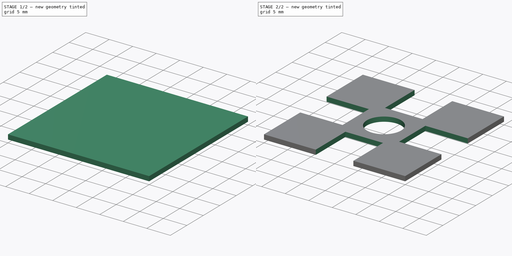
[diagram: build sequence overview — one tinted view per stage of 2, left to right]
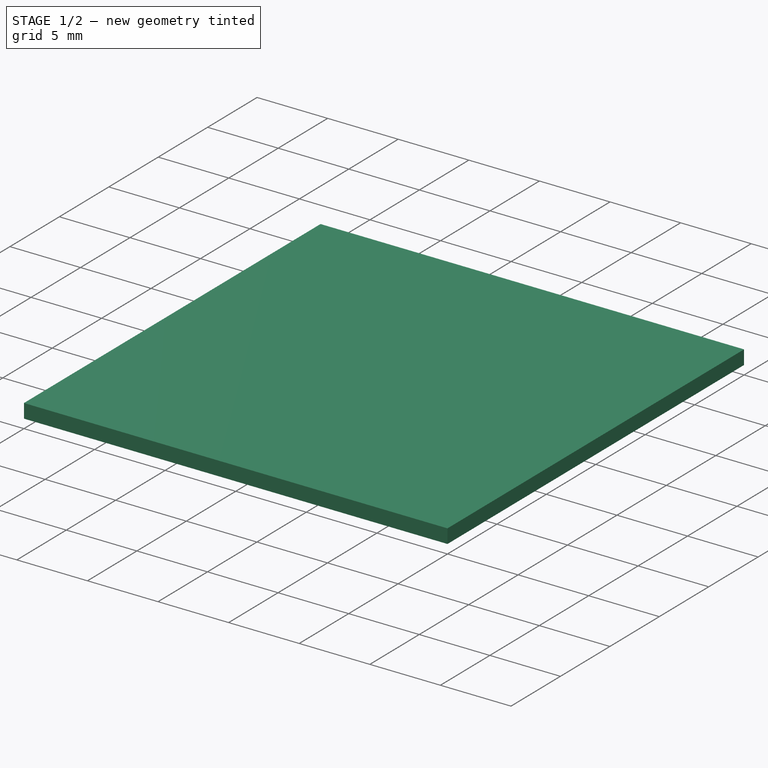
[diagram: stage 1 of 2 — iso view after this stage's code; geometry added in this stage tinted green]
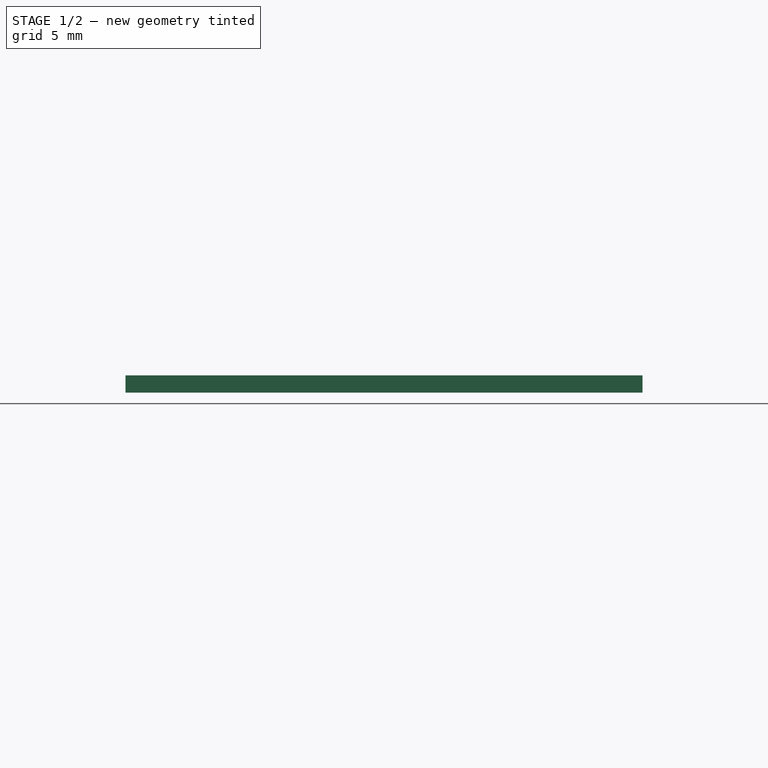
[diagram: stage 1 of 2 — front view after this stage's code; geometry added in this stage tinted green]
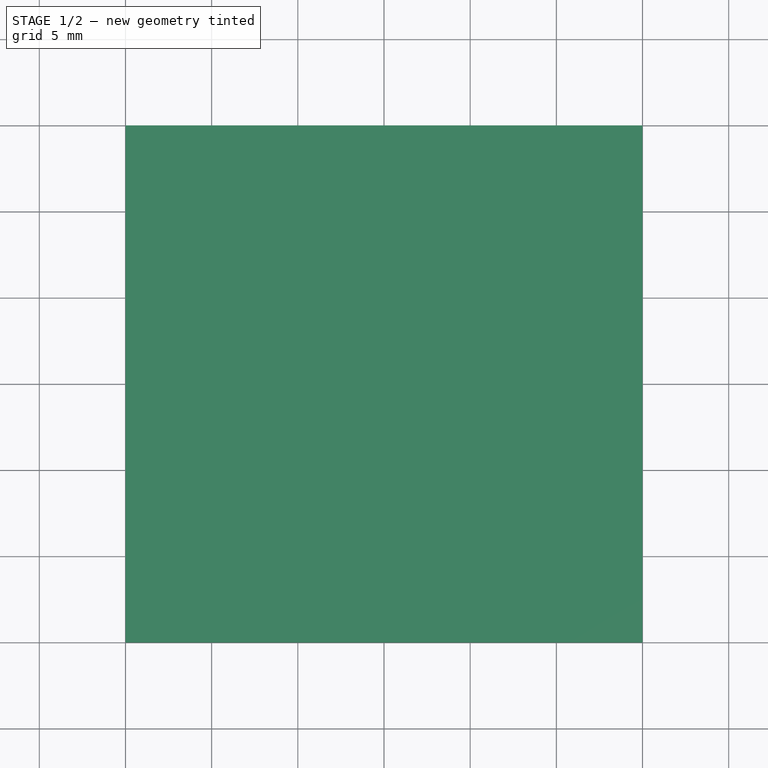
[diagram: stage 1 of 2 — top view after this stage's code; geometry added in this stage tinted green]
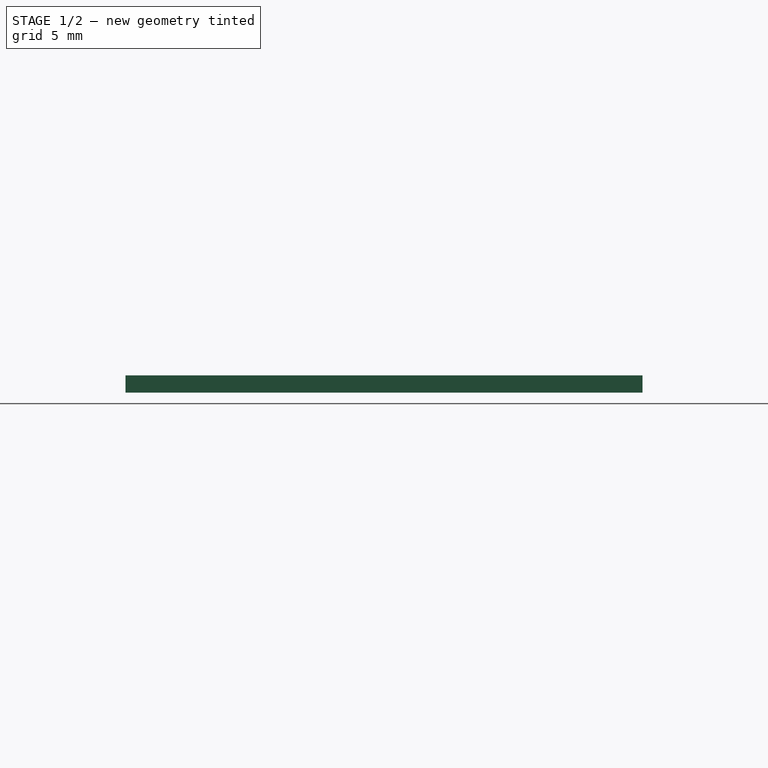
[diagram: stage 1 of 2 — right view after this stage's code; geometry added in this stage tinted green]
FCSTD DOCUMENT  (FreeCAD 0.16R5231 (Git))
Label: 30x30x1 Profile
License: All rights reserved
LicenseURL: http://en.wikipedia.org/wiki/All_rights_reserved
objects: Sketcher::SketchObject×2, PartDesign::Pad×1, PartDesign::Pocket×1
note: 6 computed .brp shape members not serialized (recipe doc carries the construction recipe); baked Part::Feature solids carry a one-line shape summary decoded from their .brp

FEATURE [Sketcher::SketchObject] Sketch003
  sketch-geometry (4):
    g0: LineSegment StartX=0 StartY=0 StartZ=0 EndX=30 EndY=0 EndZ=0
    g1: LineSegment StartX=30 StartY=0 StartZ=0 EndX=30 EndY=30 EndZ=0
    g2: LineSegment StartX=30 StartY=30 StartZ=0 EndX=0 EndY=30 EndZ=0
    g3: LineSegment StartX=0 StartY=30 StartZ=0 EndX=0 EndY=0 EndZ=0
  constraints (11):
    c: Coincident(g0,g1)
    c: Coincident(g1,g2)
    c: Coincident(g2,g3)
    c: Coincident(g3,g0)
    c: Horizontal(g0)
    c: Horizontal(g2)
    c: Vertical(g1)
    c: Vertical(g3)
    c: Coincident(g0,g-1)
    c: DistanceY(g3) = -30
    c: Equal(g0,g3)
FEATURE [PartDesign::Pad] Pad002
  Length = 1
  Length2 = 100
  Sketch = -> Sketch003
  Type = 0
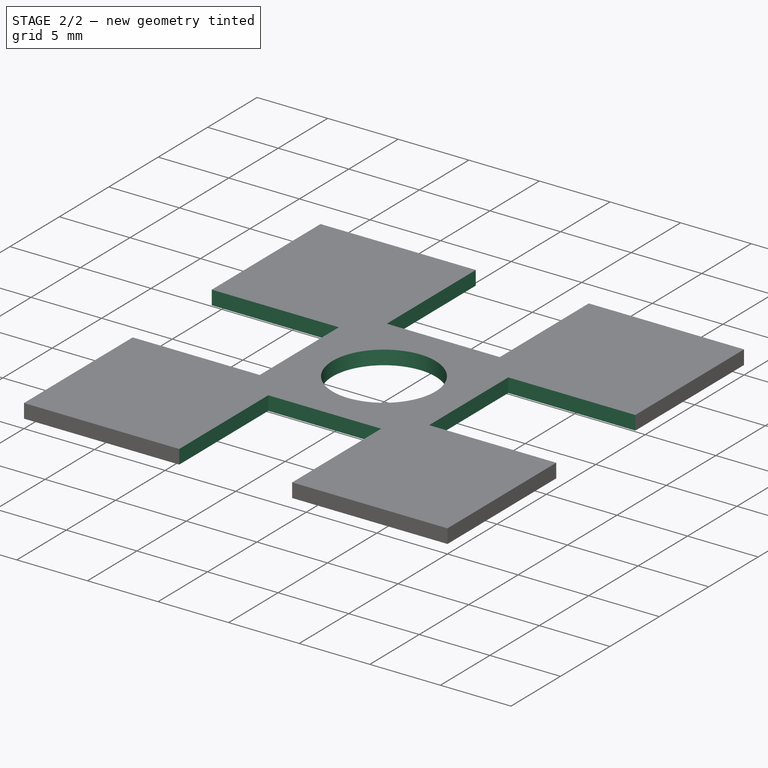
[diagram: stage 2 of 2 — iso view after this stage's code; geometry added in this stage tinted green]
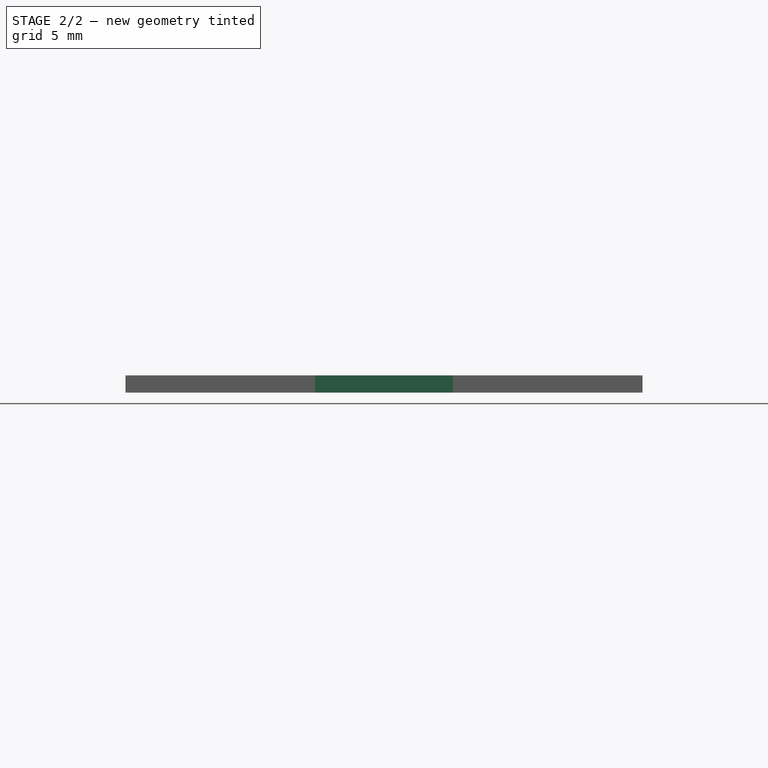
[diagram: stage 2 of 2 — front view after this stage's code; geometry added in this stage tinted green]
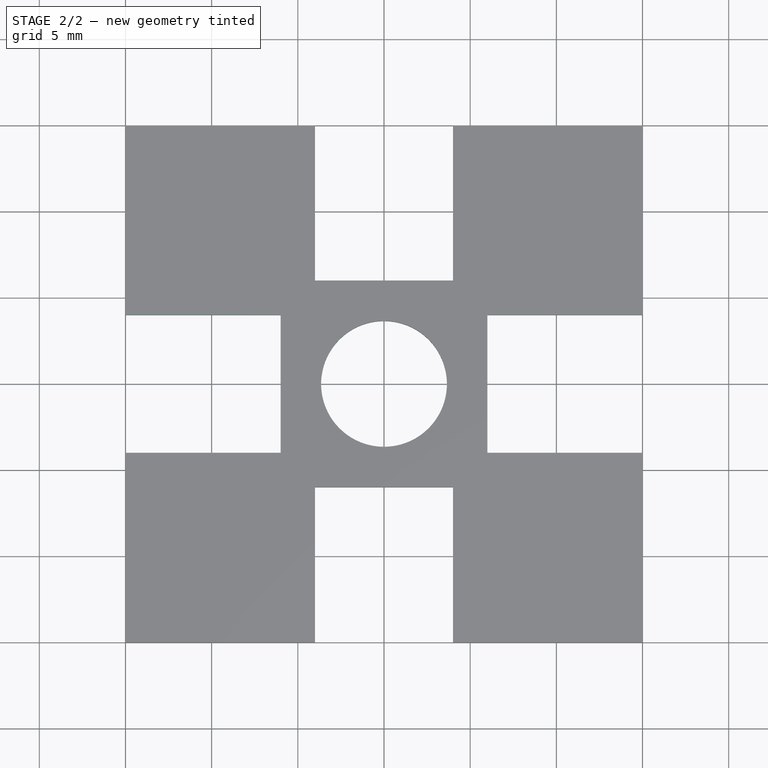
[diagram: stage 2 of 2 — top view after this stage's code; geometry added in this stage tinted green]
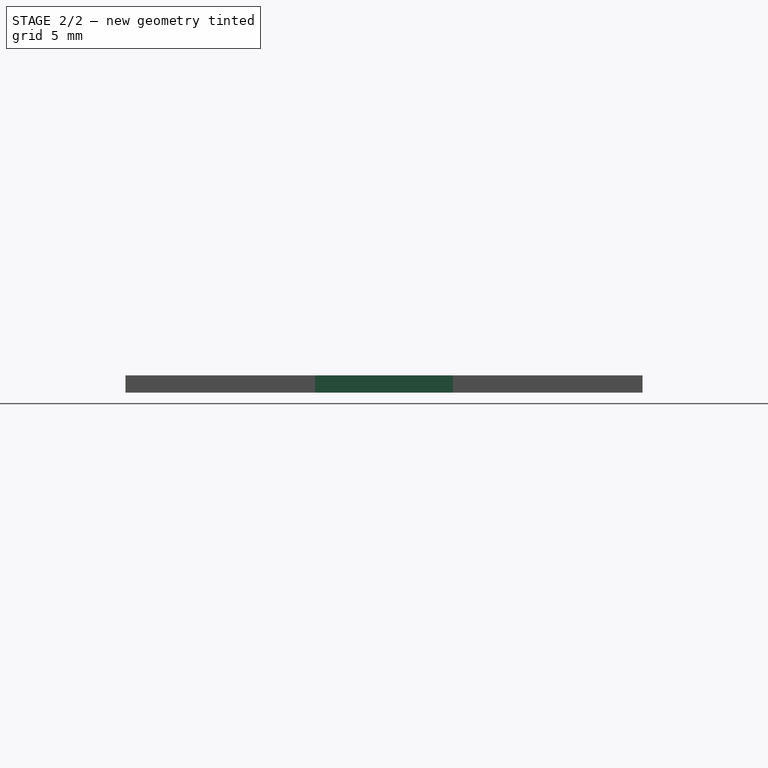
[diagram: stage 2 of 2 — right view after this stage's code; geometry added in this stage tinted green]
FEATURE [Sketcher::SketchObject] Sketch002  label="Sketch007"
  ExternalGeometry = -> [Pad002]
  Placement = pos=(0,0,1) rot=(0,0,1;0rad)
  Support = -> Pad002 [Face6]
  sketch-geometry (22):
    g0: LineSegment StartX=11 StartY=30 StartZ=0 EndX=19 EndY=30 EndZ=0
    g1: LineSegment StartX=19 StartY=30 StartZ=0 EndX=19 EndY=21 EndZ=0
    g2: LineSegment StartX=19 StartY=21 StartZ=0 EndX=11 EndY=21 EndZ=0
    g3: LineSegment StartX=11 StartY=21 StartZ=0 EndX=11 EndY=30 EndZ=0
    g4: Circle CenterX=15 CenterY=15 CenterZ=0 NormalX=0 NormalY=0 NormalZ=1 Radius=3.65
    g5: LineSegment StartX=11 StartY=0 StartZ=0 EndX=19 EndY=0 EndZ=0
    g6: LineSegment StartX=19 StartY=0 StartZ=0 EndX=19 EndY=9 EndZ=0
    g7: LineSegment StartX=19 StartY=9 StartZ=0 EndX=11 EndY=9 EndZ=0
    g8: LineSegment StartX=11 StartY=9 StartZ=0 EndX=11 EndY=0 EndZ=0
    g9: LineSegment StartX=0 StartY=19 StartZ=0 EndX=9 EndY=19 EndZ=0
    g10: LineSegment StartX=9 StartY=19 StartZ=0 EndX=9 EndY=11 EndZ=0
    g11: LineSegment StartX=9 StartY=11 StartZ=0 EndX=0 EndY=11 EndZ=0
    g12: LineSegment StartX=0 StartY=11 StartZ=0 EndX=0 EndY=19 EndZ=0
    g13: LineSegment StartX=30 StartY=11 StartZ=0 EndX=21 EndY=11 EndZ=0
    g14: LineSegment StartX=21 StartY=11 StartZ=0 EndX=21 EndY=19 EndZ=0
    g15: LineSegment StartX=21 StartY=19 StartZ=0 EndX=30 EndY=19 EndZ=0
    g16: LineSegment StartX=30 StartY=19 StartZ=0 EndX=30 EndY=11 EndZ=0
    g17: LineSegment [constr] StartX=0 StartY=0 StartZ=0 EndX=30 EndY=30 EndZ=0
    g18: LineSegment [constr] StartX=15 StartY=0 StartZ=0 EndX=15 EndY=30 EndZ=0
    g19: LineSegment [constr] StartX=0 StartY=15 StartZ=0 EndX=30 EndY=15 EndZ=0
    g20: LineSegment [constr] StartX=9 StartY=11 StartZ=0 EndX=21 EndY=11 EndZ=0
    g21: LineSegment [constr] StartX=11 StartY=9 StartZ=0 EndX=11 EndY=21 EndZ=0
  constraints (58):
    c: Coincident(g0,g1)
    c: Coincident(g1,g2)
    c: Coincident(g2,g3)
    c: Coincident(g3,g0)
    c: Horizontal(g0)
    c: Horizontal(g2)
    c: Vertical(g1)
    c: Vertical(g3)
    c: Coincident(g5,g6)
    c: Coincident(g6,g7)
    c: Coincident(g7,g8)
    c: Coincident(g8,g5)
    c: Horizontal(g5)
    c: Horizontal(g7)
    c: Vertical(g6)
    c: Vertical(g8)
    c: Coincident(g9,g10)
    c: Coincident(g10,g11)
    c: Coincident(g11,g12)
    c: Coincident(g12,g9)
    c: Horizontal(g9)
    c: Horizontal(g11)
    c: Vertical(g10)
    c: Vertical(g12)
    c: Coincident(g13,g14)
    c: Coincident(g14,g15)
    c: Coincident(g15,g16)
    c: Coincident(g16,g13)
    c: Horizontal(g13)
    c: Horizontal(g15)
    c: Vertical(g14)
    c: Vertical(g16)
    c: Equal(g7,g10)
    c: Equal(g10,g2)
    c: Equal(g2,g14)
    c: Equal(g9,g1)
    c: Equal(g1,g13)
    c: Equal(g13,g8)
    c: DistanceX(g7) = -8
    c: DistanceY(g8) = -9
    c: Coincident(g17,g-1)
    c: Coincident(g20,g10)
    c: Coincident(g20,g13)
    c: Horizontal(g20)
    c: Coincident(g-4,g17)
    c: Radius(g4) = 3.65
    c: Coincident(g21,g7)
    c: Coincident(g21,g2)
    c: Vertical(g21)
    c: Symmetric(g-3,g-3,g18)
    c: Symmetric(g-5,g-5,g18)
    c: Symmetric(g-6,g-6,g19)
    c: Symmetric(g-4,g-4,g19)
    c: Symmetric(g13,g15,g19)
    c: PointOnObject(g11,g-6)
    c: Symmetric(g5,g5,g18)
    c: PointOnObject(g0,g-3)
    c: Symmetric(g17,g17,g4)
FEATURE [PartDesign::Pocket] Pocket  label="30x30x1 Profile"
  Length = 1
  Sketch = -> Sketch002
  Type = 0
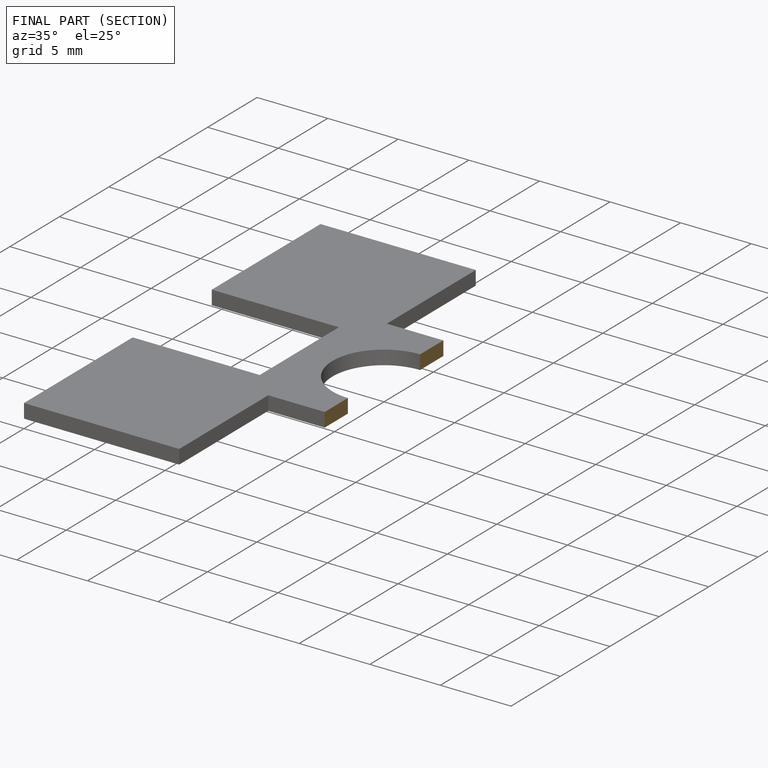
[diagram: finished part — half-section view (interior)]
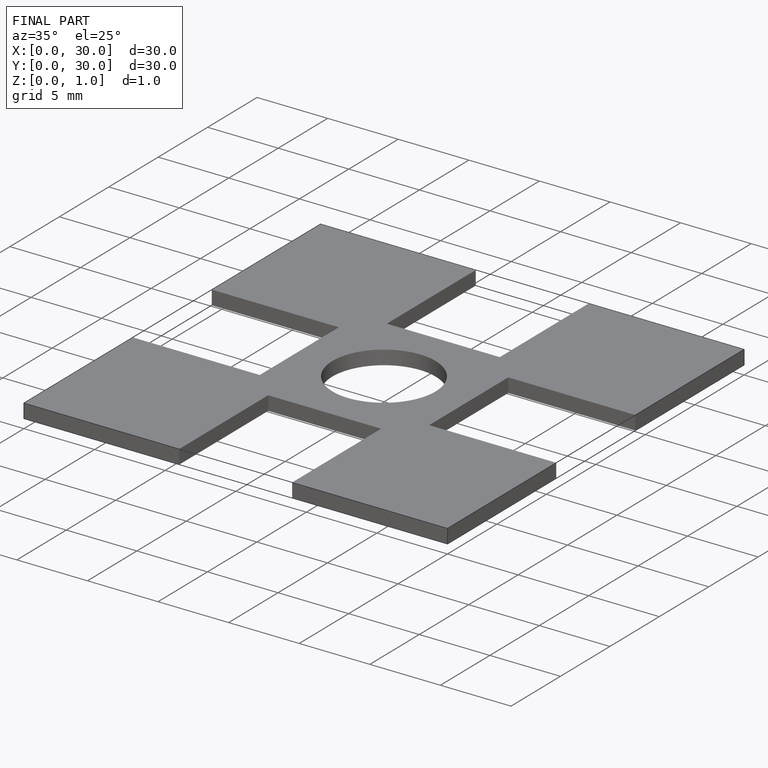
[diagram: finished part — iso view with bounding-box wireframe]
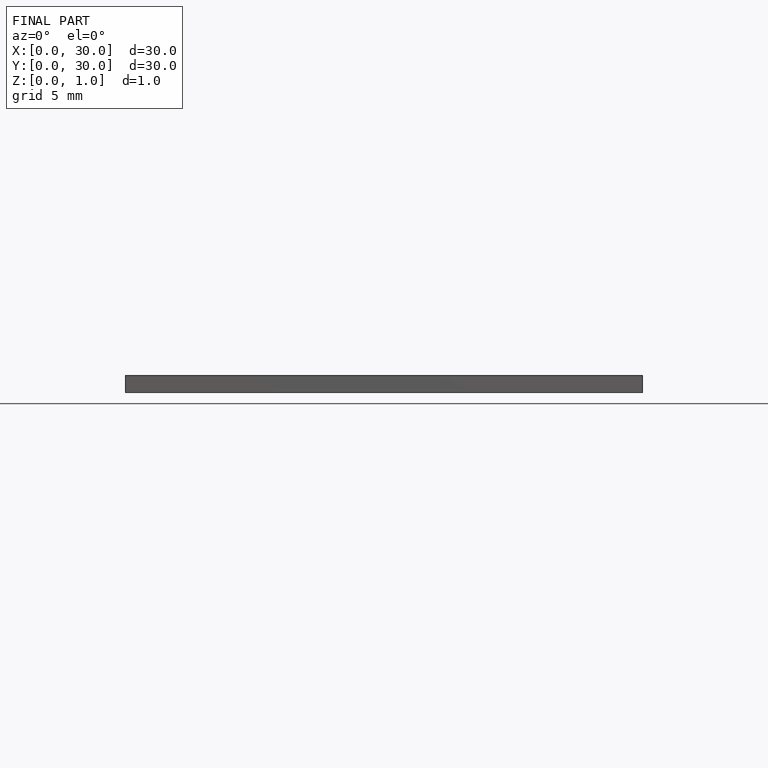
[diagram: finished part — front view with bounding-box wireframe]
